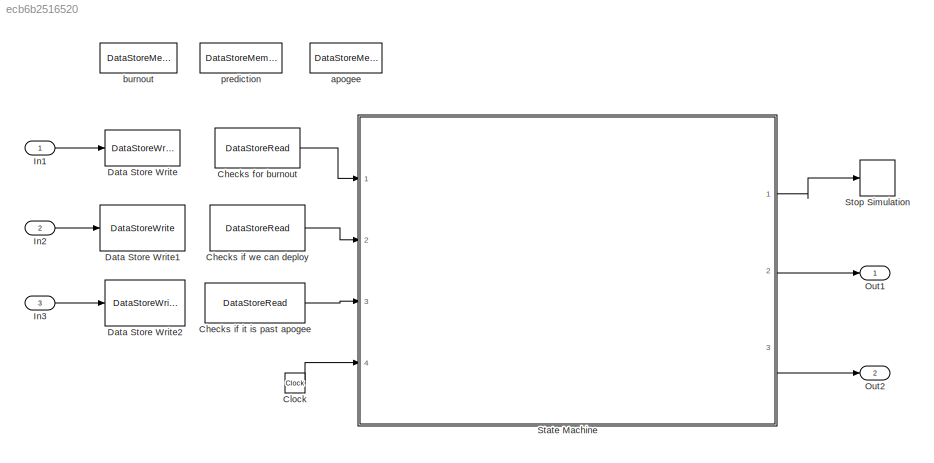
MODEL slx_ecb6b2516520
KIND model
CONFIG AbsTol = auto
CONFIG EnableMultiTasking = off
CONFIG FixedStep = auto
CONFIG MaxStep = auto
CONFIG MinStep = auto
CONFIG RelTol = 1e-3
CONFIG SampleTimeConstraint = Unconstrained
CONFIG Solver = VariableStepAuto
CONFIG SolverName = VariableStepAuto
CONFIG StartTime = 0.0
CONFIG StopTime = 10.0
BLOCK [DataStoreRead] Checks for burnout
  DataStoreName = burnout_check
  Ports = [0, 1]
BLOCK [DataStoreRead] Checks if it is past apogee
  DataStoreName = apogee_check
  Ports = [0, 1]
BLOCK [DataStoreRead] Checks if we can deploy
  DataStoreName = prediction_alg
  Ports = [0, 1]
BLOCK [Clock] Clock
  Decimation = 1
BLOCK [DataStoreWrite] Data Store Write
  DataStoreName = burnout_check
  Ports = [1]
BLOCK [DataStoreWrite] Data Store Write1
  DataStoreName = prediction_alg
  Ports = [1]
BLOCK [DataStoreWrite] Data Store Write2
  DataStoreName = apogee_check
  Ports = [1]
BLOCK [Inport] In1
  IconDisplay = Port number
BLOCK [Inport] In2
  IconDisplay = Port number
  Port = 2
BLOCK [Inport] In3
  IconDisplay = Port number
  Port = 3
BLOCK [Outport] Out1
  IconDisplay = Port number
BLOCK [Outport] Out2
  IconDisplay = Port number
  Port = 2
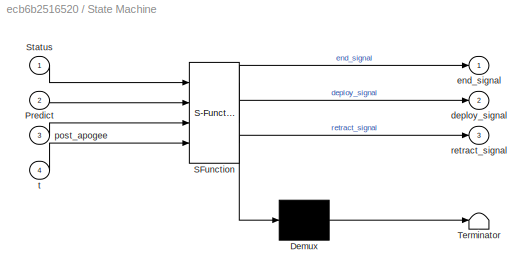
BLOCK [SubSystem] State Machine
  ErrorFcn = Stateflow.Translate.translate
  PermitHierarchicalResolution = ExplicitOnly
  Ports = [4, 3]
  RequestExecContextInheritance = off
  SFBlockType = Chart
  TreatAsAtomicUnit = on
  Variant = off
BLOCK [Demux] State Machine/ Demux 
  Outputs = 1
  Ports = [1, 1]
BLOCK [S-Function] State Machine/ SFunction 
  EnableBusSupport = on
  FunctionName = sf_sfun
  PortCounts = [4 4]
  Ports = [4, 4]
  SFcnIsStateOwnerBlock = off
  SFunctionDeploymentMode = off
  Tag = Stateflow S-Function control 3
BLOCK [Terminator] State Machine/ Terminator 
BLOCK [Inport] State Machine/Predict
  IconDisplay = Port number
  Port = 2
BLOCK [Inport] State Machine/Status
  IconDisplay = Port number
BLOCK [Outport] State Machine/deploy_signal
  IconDisplay = Port number
  Port = 2
BLOCK [Outport] State Machine/end_signal
  IconDisplay = Port number
BLOCK [Inport] State Machine/post_apogee
  IconDisplay = Port number
  Port = 3
BLOCK [Outport] State Machine/retract_signal
  IconDisplay = Port number
  Port = 3
BLOCK [Inport] State Machine/t
  IconDisplay = Port number
  Port = 4
BLOCK [Stop] Stop Simulation
BLOCK [DataStoreMemory] apogee
  DataStoreName = apogee_check
  ReadBeforeWriteMsg = warning
  ShowAdditionalParam = off
  WriteAfterReadMsg = warning
  WriteAfterWriteMsg = warning
BLOCK [DataStoreMemory] burnout
  DataStoreName = burnout_check
  ReadBeforeWriteMsg = warning
  ShowAdditionalParam = off
  WriteAfterReadMsg = warning
  WriteAfterWriteMsg = warning
BLOCK [DataStoreMemory] prediction 
  DataStoreName = prediction_alg
  ReadBeforeWriteMsg = warning
  ShowAdditionalParam = off
  WriteAfterReadMsg = warning
  WriteAfterWriteMsg = warning
LINE Checks for burnout:1 -> State Machine:1
LINE Checks if it is past apogee:1 -> State Machine:3
LINE Checks if we can deploy:1 -> State Machine:2
LINE Clock:1 -> State Machine:4
LINE In1:1 -> Data Store Write:1
LINE In2:1 -> Data Store Write1:1
LINE In3:1 -> Data Store Write2:1
LINE State Machine:1 -> Stop Simulation:1
LINE State Machine:2 -> Out1:1
LINE State Machine:3 -> Out2:1
CHART State Machine states=5 transitions=7
  STATE_LABEL 'STANDBY\nentry:\n\t//post_burnout = Status();'
  STATE_LABEL 'PREDICT_APOGEE\nentry:\n\t//t=0;\nduring:\n\t//deploy=Predict();\n'
  STATE_LABEL 'DEPLOY_BRAKES\nentry:\n\tdeploy_signal = 1\n'
  STATE_LABEL 'POST_APOGEE\nentry:\n\tend_signal = 1'
  STATE_LABEL 'RETRACT_BRAKES\nentry:\n\tretract_signal = 1'
